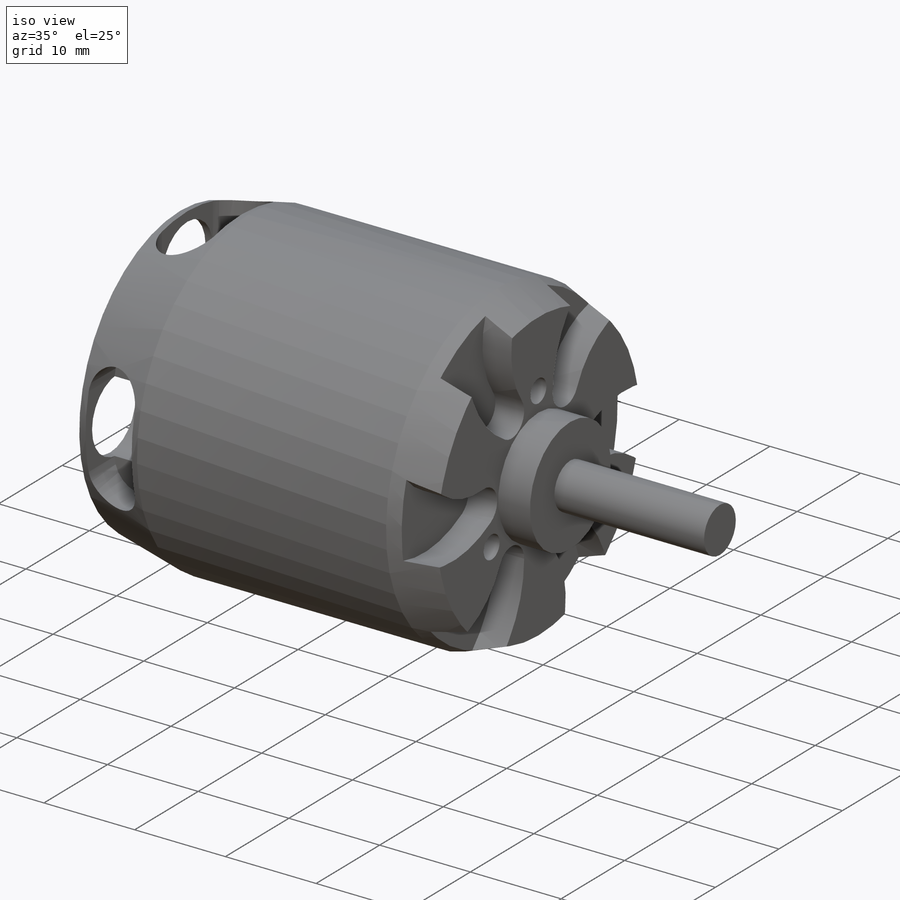
[diagram: iso view]
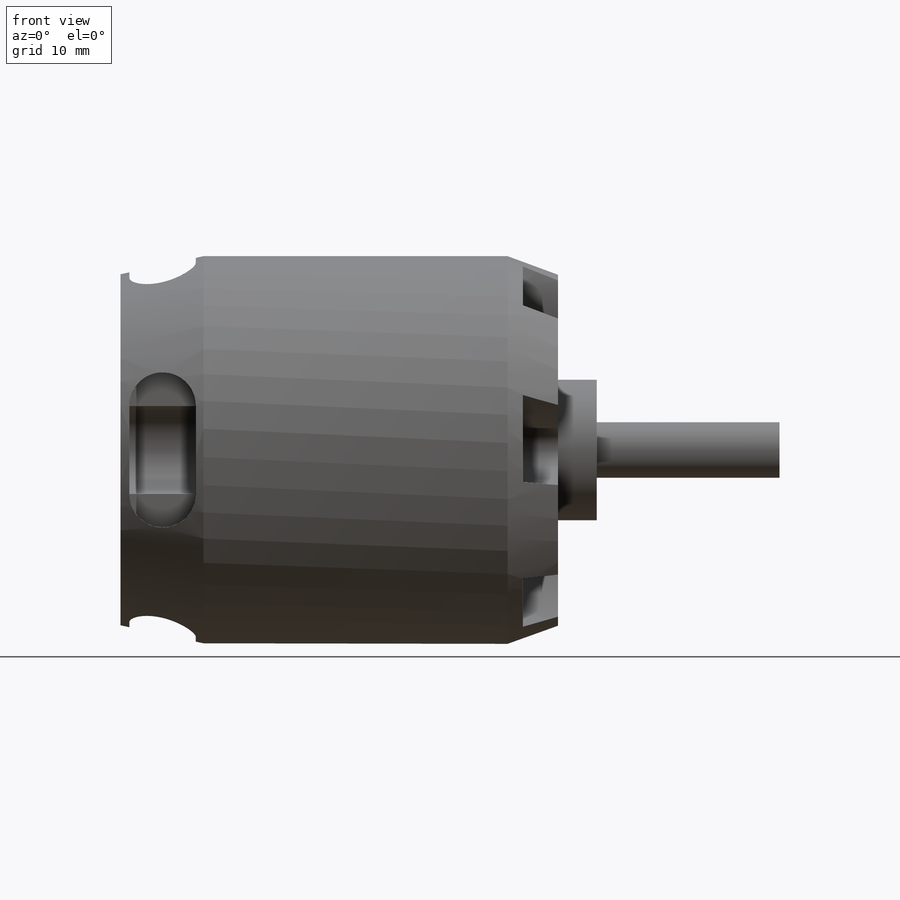
[diagram: front view]
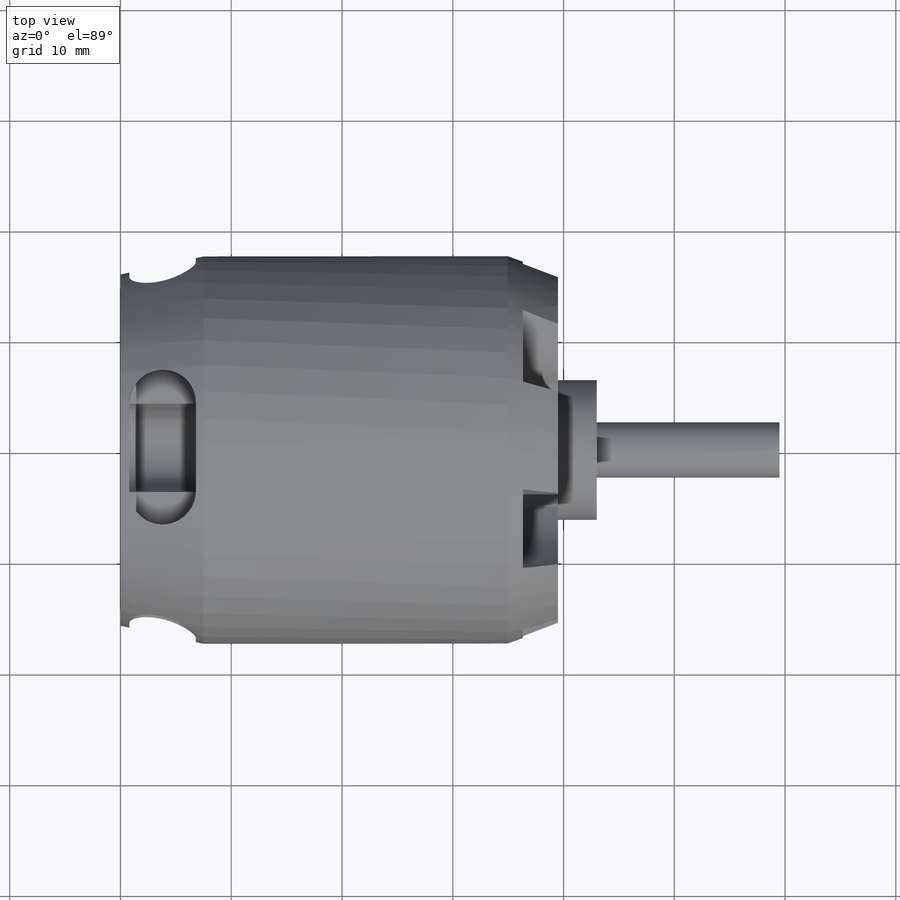
[diagram: top view]
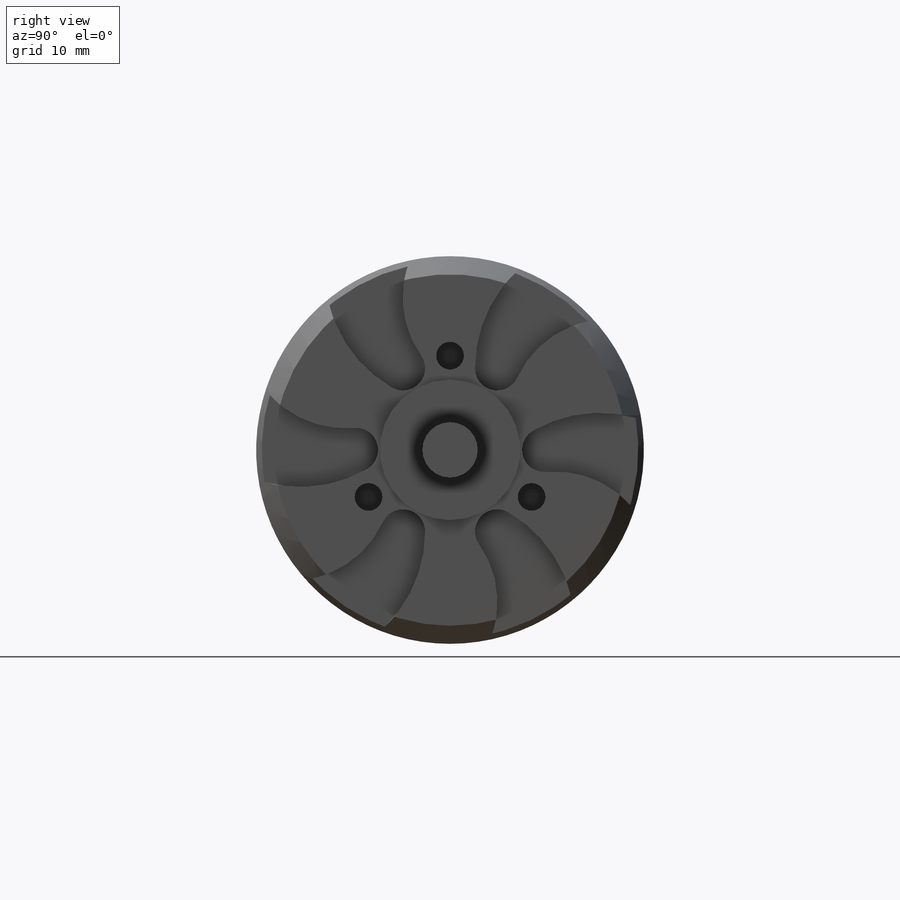
[diagram: right view]
SOLIDWORKS PART (.sldprt)
format: sldprt  version: not decoded by parser v0  size: 500,224 bytes
history: native  units: mm
features: sketch x6, cut_extrude x5, pattern_circular x2, material x1, revolve x1 (+11 scaffold rows collapsed)
feature tree (26):
  scaffold x11  (default folders/planes/origin — collapsed)
  material  "Material <not specified>"
  sketch  "Sketch1"  dims[D1=5.0mm D2=35.0mm D3=16.5mm D4=3.5mm D5=59.5mm D6=32.0mm]
  revolve  "Revolve1"  Angle=360deg
  sketch  "Sketch2"  dims[D1=2.5mm D2=8.5mm D3=3.0]
  cut_extrude  "Cut-Extrude1"  Depth=6.35mm
  sketch  "Sketch3"  dims[c1.D1=~1.637342mm c1.D3=~1.637342mm c1.D4=~1.637342mm c1.D5=3.0mm c2.D1=25.0mm c2.D2=12.5mm c2.D3=19.0mm c2.D4=9.5mm c2.D6=~4.678577mm c3.D6=45.0deg c3.D7=19.0mm c4.D7=45.0deg]
  cut_extrude  "Cut-Extrude2"  Depth=6.35mm
  sketch  "Sketch6"  dims[D1=3.0mm D2=3.8mm D3=8.0mm]
  cut_extrude  "Cut-Extrude5"  Depth=6.35mm
  sketch  "Sketch4"  dims[c1.D2=8.0mm c1.D1=~8.580311mm c2.D1=45.0deg c2.D3=10.0mm c3.D1=11.0mm]
  cut_extrude  "Cut-Extrude3"  [1 undecoded]
  pattern_circular  "CirPattern1"  Count=4 Angle=360deg
  sketch  "Sketch5"  dims[c1.D1=2.0mm c1.D2=12.0mm c1.D3=9.0mm c1.D4=8.5mm c1.D5=8.5mm c2.D5=60.0deg]
  cut_extrude  "Cut-Extrude4"  Depth=3.175mm
  pattern_circular  "CirPattern2"  Count=6 Angle=360deg
decode coverage: 13 of 14 modeling features carry decoded parameters
note: ~ marks probable driven/reference dimensions
note: 1 parameter value undecoded
note: suppression state not decoded; provenance and decode notes live in map.json
